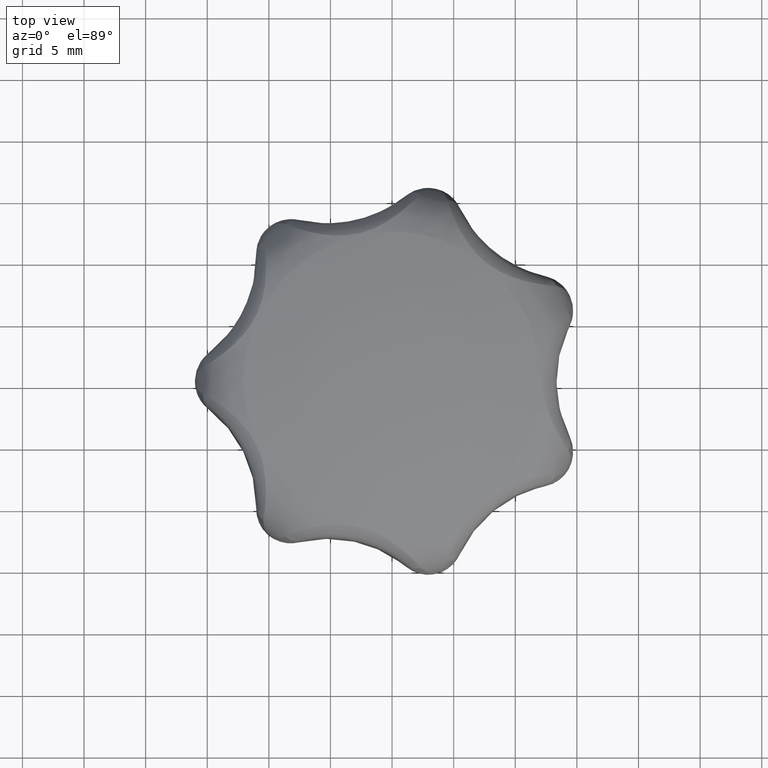
[diagram: clean part render]
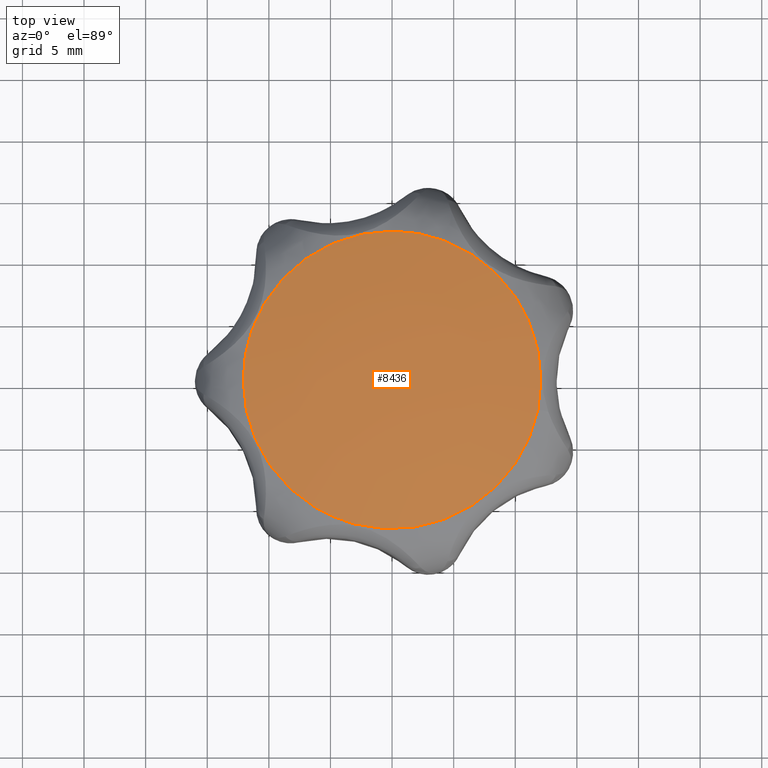
[diagram: same view with one face highlighted and labeled with its STEP entity id]
A machine part, top view. The second image highlights one B-rep face of the part: STEP entity #8436.
In plain terms, the highlighted face is a freeform B-spline surface patch.
Its self-contained STEP definition (entity closure, byte-faithful):
#1377=CARTESIAN_POINT('',(-12.078431372548939,0.0,18.681911959793648));
#1378=VERTEX_POINT('',#1377);
#1379=CARTESIAN_POINT('',(-3.085112212263117,-11.677781770107220,18.681911959691892));
#1380=VERTEX_POINT('',#1379);
#1381=CARTESIAN_POINT('',(-12.078431372548939,0.0,18.681911959793648));
#1382=CARTESIAN_POINT('',(-12.078488586270000,-0.681190459455853,18.681911959793680));
#1383=CARTESIAN_POINT('',(-11.985621428929001,-1.775195515778539,18.681911959792679));
#1384=CARTESIAN_POINT('',(-11.642099451611520,-3.308034122786372,18.681911959788579));
#1385=CARTESIAN_POINT('',(-11.232541263802300,-4.501044523524386,18.681911959784280));
#1386=CARTESIAN_POINT('',(-10.648108410427501,-5.756136090783026,18.681911959777199));
#1387=CARTESIAN_POINT('',(-10.000812942868370,-6.815267345168175,18.681911959770421));
#1388=CARTESIAN_POINT('',(-9.118423420274171,-7.961028937564422,18.681911959759830));
#1389=CARTESIAN_POINT('',(-8.010238062747844,-9.106138774413347,18.681911959747708));
#1390=CARTESIAN_POINT('',(-6.686267126480794,-10.102973399018881,18.681911959732819));
#1391=CARTESIAN_POINT('',(-5.028803694298430,-11.034573753845111,18.681911959713840));
#1392=CARTESIAN_POINT('',(-3.883450793011228,-11.467008407485860,18.681911959700908));
#1393=CARTESIAN_POINT('',(-3.085112212263117,-11.677781770107220,18.681911959691892));
#1394=B_SPLINE_CURVE_WITH_KNOTS('',3,(#1381,#1382,#1383,#1384,#1385,#1386,#1387,#1388,#1389,#1390,#1391,#1392,#1393),.UNSPECIFIED.,.F.,.U.,(4,1,1,1,1,1,1,1,1,1,4),(0.000000018044931,2.043560118203287,3.282084965677662,4.706386433232723,5.821057245005770,7.431136666015876,8.421950952077188,10.155883892107390,12.199448234230131,13.376051327484801,15.853089908856660),.UNSPECIFIED.);
#1395=EDGE_CURVE('',#1378,#1380,#1394,.T.);
#1397=CARTESIAN_POINT('',(-0.000000556019385,12.078431372548931,18.681911959793648));
#1398=VERTEX_POINT('',#1397);
#1399=CARTESIAN_POINT('',(-0.000000556019385,12.078431372548931,18.681911959793648));
#1400=CARTESIAN_POINT('',(-0.716423101181518,12.078495431918380,18.681911959793620));
#1401=CARTESIAN_POINT('',(-2.025717233411353,11.961594952336210,18.681911959793670));
#1402=CARTESIAN_POINT('',(-3.801085043697661,11.505292568930621,18.681911959793670));
#1403=CARTESIAN_POINT('',(-5.197972344570841,10.931663023254441,18.681911959793648));
#1404=CARTESIAN_POINT('',(-6.433089512476235,10.251862897668090,18.681911959793659));
#1405=CARTESIAN_POINT('',(-7.687727832872894,9.368290500078306,18.681911959793648));
#1406=CARTESIAN_POINT('',(-8.987579633245984,8.145866172691774,18.681911959793648));
#1407=CARTESIAN_POINT('',(-10.046457379922259,6.771715909902700,18.681911959793680));
#1408=CARTESIAN_POINT('',(-10.773702815734790,5.506000967037018,18.681911959793609));
#1409=CARTESIAN_POINT('',(-11.419629493872961,4.061053429085683,18.681911959793759));
#1410=CARTESIAN_POINT('',(-11.939330148320630,2.248059725903568,18.681911959793361));
#1411=CARTESIAN_POINT('',(-12.078493255069830,0.741125241391562,18.681911959793808));
#1412=CARTESIAN_POINT('',(-12.078431372548939,0.0,18.681911959793648));
#1413=B_SPLINE_CURVE_WITH_KNOTS('',3,(#1399,#1400,#1401,#1402,#1403,#1404,#1405,#1406,#1407,#1408,#1409,#1410,#1411,#1412),.UNSPECIFIED.,.F.,.U.,(4,1,1,1,1,1,1,1,1,1,1,4),(0.000000025185393,2.149260281654211,3.927956288077604,5.484324228516453,6.670121579643981,8.152382394495357,10.079287704940320,12.006212547748000,13.340237810555861,14.451927039632510,16.749413117552042,18.972785082808770),.UNSPECIFIED.);
#1414=EDGE_CURVE('',#1398,#1378,#1413,.T.);
#1416=CARTESIAN_POINT('',(12.078431372548939,0.0,18.681911959793648));
#1417=VERTEX_POINT('',#1416);
#1418=CARTESIAN_POINT('',(12.078431372548939,0.0,18.681911959793648));
#1419=CARTESIAN_POINT('',(12.078518997975300,0.765829668413220,18.681911959793631));
#1420=CARTESIAN_POINT('',(11.953467901337071,2.075110223492290,18.681911959793659));
#1421=CARTESIAN_POINT('',(11.429720915226570,4.062378675553191,18.681911959793648));
#1422=CARTESIAN_POINT('',(10.665664982431791,5.786108961466554,18.681911959793698));
#1423=CARTESIAN_POINT('',(9.683843999349046,7.275079542007291,18.681911959793599));
#1424=CARTESIAN_POINT('',(8.762670604236146,8.342940603023163,18.681911959793759));
#1425=CARTESIAN_POINT('',(7.738797251753803,9.311813579936143,18.681911959793482));
#1426=CARTESIAN_POINT('',(6.545023824004915,10.197180449505961,18.681911959793840));
#1427=CARTESIAN_POINT('',(5.067785520828100,11.004347072936330,18.681911959793471));
#1428=CARTESIAN_POINT('',(3.517840267587872,11.596779951645409,18.681911959793531));
#1429=CARTESIAN_POINT('',(1.803385554181036,11.987283223639301,18.681911959793869));
#1430=CARTESIAN_POINT('',(0.617600154257211,12.078467536377129,18.681911959794260));
#1431=CARTESIAN_POINT('',(-0.000000556019385,12.078431372548931,18.681911959793648));
#1432=B_SPLINE_CURVE_WITH_KNOTS('',3,(#1418,#1419,#1420,#1421,#1422,#1423,#1424,#1425,#1426,#1427,#1428,#1429,#1430,#1431),.UNSPECIFIED.,.F.,.U.,(4,1,1,1,1,1,1,1,1,1,1,4),(0.000000025127473,2.297474923718795,3.927956417795473,6.151333605180898,7.930045569470622,9.264069760011280,10.375735217866019,12.154432030973640,13.710799779195570,15.415388800207509,17.119987055185970,18.972785709573149),.UNSPECIFIED.);
#1433=EDGE_CURVE('',#1417,#1398,#1432,.T.);
#1435=CARTESIAN_POINT('',(11.835112005642600,-2.412183294227705,18.681911959705118));
#1436=VERTEX_POINT('',#1435);
#1437=CARTESIAN_POINT('',(11.835112005642600,-2.412183294227705,18.681911959705118));
#1438=CARTESIAN_POINT('',(11.996852999727549,-1.618995201128465,18.681911959763841));
#1439=CARTESIAN_POINT('',(12.078493550276010,-0.809509621713274,18.681911959793709));
#1440=CARTESIAN_POINT('',(12.078431372548939,0.0,18.681911959793648));
#1441=B_SPLINE_CURVE_WITH_KNOTS('',3,(#1437,#1438,#1439,#1440),.UNSPECIFIED.,.F.,.U.,(4,4),(4.532645E-010,2.428516715882334),.UNSPECIFIED.);
#1442=EDGE_CURVE('',#1436,#1417,#1441,.T.);
#2022=CARTESIAN_POINT('',(-3.085112212263117,-11.677781770107220,18.681911959691892));
#2023=CARTESIAN_POINT('',(-2.193971505735202,-11.913421564417179,18.681911959706099));
#2024=CARTESIAN_POINT('',(-0.867638187402067,-12.105175839489750,18.681911959724768));
#2025=CARTESIAN_POINT('',(0.952192436522861,-12.065929844584890,18.681911959744959));
#2026=CARTESIAN_POINT('',(2.299714783659687,-11.885904687641380,18.681911959757318));
#2027=CARTESIAN_POINT('',(3.666230775673790,-11.536281405734520,18.681911959767330));
#2028=CARTESIAN_POINT('',(5.175544471639838,-10.959690443616530,18.681911959774599));
#2029=CARTESIAN_POINT('',(6.702352193628317,-10.109627289921381,18.681911959777722));
#2030=CARTESIAN_POINT('',(8.033553022027220,-9.061355913694207,18.681911959775150));
#2031=CARTESIAN_POINT('',(9.097093766965067,-7.985783249802081,18.681911959769039));
#2032=CARTESIAN_POINT('',(9.920629613194137,-6.936200515545487,18.681911959759852));
#2033=CARTESIAN_POINT('',(10.618380740065311,-5.800242504110336,18.681911959749890));
#2034=CARTESIAN_POINT('',(11.319596910731381,-4.345250304927422,18.681911959731138));
#2035=CARTESIAN_POINT('',(11.676711852487280,-3.189953150690319,18.681911959717858));
#2036=CARTESIAN_POINT('',(11.835112005642600,-2.412183294227705,18.681911959705118));
#2037=B_SPLINE_CURVE_WITH_KNOTS('',3,(#2022,#2023,#2024,#2025,#2026,#2027,#2028,#2029,#2030,#2031,#2032,#2033,#2034,#2035,#2036),.UNSPECIFIED.,.F.,.U.,(4,1,1,1,1,1,1,1,1,1,1,1,4),(0.000000024481118,2.765243633749908,3.994240903385679,5.453676905583476,6.836307310543182,8.218923483096203,10.292835321244050,12.059537375740600,13.288533411144011,14.824782045996750,16.053779598350129,17.282781367525409,19.663959135671529),.UNSPECIFIED.);
#2038=EDGE_CURVE('',#1380,#1436,#2037,.T.);
#8405=CARTESIAN_POINT('',(-13.066876304141223,-13.065908183851009,16.863397421878297));
#8406=CARTESIAN_POINT('',(-6.630269422450661,-13.251335232939869,18.408579478403311));
#8407=CARTESIAN_POINT('',(6.622292977362415,-13.251335464421205,18.410575329242775));
#8408=CARTESIAN_POINT('',(13.067077649940265,-13.065443839345408,16.863462419438108));
#8409=CARTESIAN_POINT('',(-13.252369311354194,-6.628835208337006,18.408557102751804));
#8410=CARTESIAN_POINT('',(-6.725804577302409,-6.724309333112371,19.998208203908568));
#8411=CARTESIAN_POINT('',(6.717470614562512,-6.724309567924877,20.000232776309531));
#8412=CARTESIAN_POINT('',(13.252327544660560,-6.628596399356823,18.408567303461307));
#8413=CARTESIAN_POINT('',(-13.252369311354194,6.623198219257144,18.410094090605892));
#8414=CARTESIAN_POINT('',(-6.725804577302409,6.718404091946232,19.999767307073618));
#8415=CARTESIAN_POINT('',(6.717470614562512,6.718403857133728,20.001791879474581));
#8416=CARTESIAN_POINT('',(13.252327544660560,6.622959156074387,18.410104235891168));
#8417=CARTESIAN_POINT('',(-13.066490352764120,13.067032468228268,16.863214926216777));
#8418=CARTESIAN_POINT('',(-6.630070684557762,13.252285430862496,18.408348137229162));
#8419=CARTESIAN_POINT('',(6.622094983198932,13.252285199388091,18.410343928320316));
#8420=CARTESIAN_POINT('',(13.066692204207349,13.066567646392972,16.863279928346689));
#8428=(BOUNDED_SURFACE()B_SPLINE_SURFACE(2,2,((#8405,#8409,#8413,#8417),(#8406,#8410,#8414,#8418),(#8407,#8411,#8415,#8419),(#8408,#8412,#8416,#8420)),.UNSPECIFIED.,.F.,.F.,.U.)B_SPLINE_SURFACE_WITH_KNOTS((3,1,3),(3,1,3),(0.0,13.338771618810590,26.694488049481720),(0.0,13.339652388718060,26.693372418581689),.UNSPECIFIED.)GEOMETRIC_REPRESENTATION_ITEM()RATIONAL_B_SPLINE_SURFACE(((1.028779370302212,1.014388735019896,1.014388735019896,1.028809738265668),(1.014390635282316,1.0,1.0,1.014421003245772),(1.014390635282316,1.0,1.0,1.014421003245772),(1.028815950772847,1.014425315490531,1.014425315490531,1.028846318736303)))REPRESENTATION_ITEM('')SURFACE());
#8429=ORIENTED_EDGE('',*,*,#1395,.T.);
#8430=ORIENTED_EDGE('',*,*,#2038,.T.);
#8431=ORIENTED_EDGE('',*,*,#1442,.T.);
#8432=ORIENTED_EDGE('',*,*,#1433,.T.);
#8433=ORIENTED_EDGE('',*,*,#1414,.T.);
#8434=EDGE_LOOP('',(#8429,#8430,#8431,#8432,#8433));
#8435=FACE_OUTER_BOUND('',#8434,.T.);
#8436=ADVANCED_FACE('',(#8435),#8428,.T.);